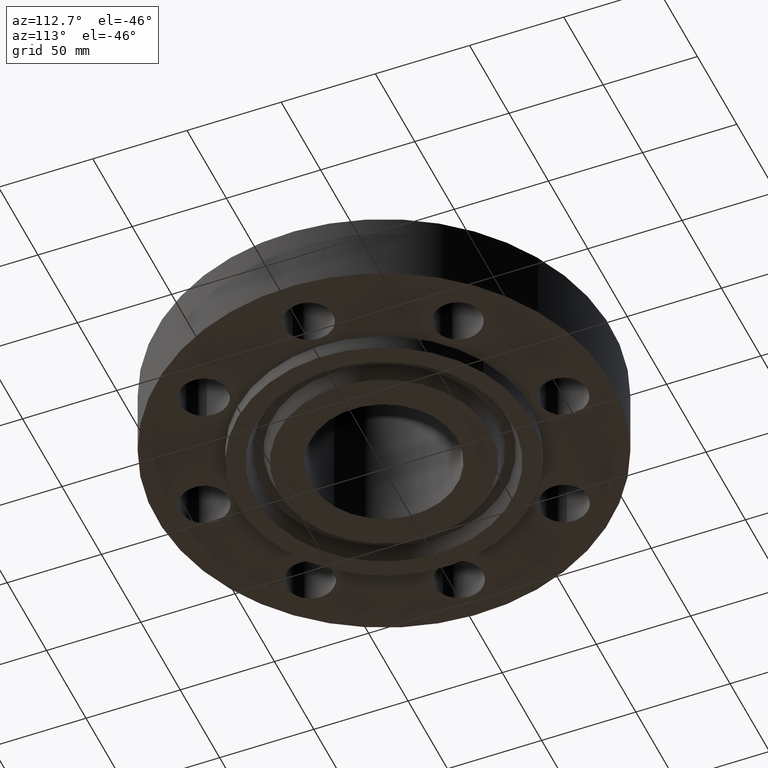
[diagram: clean part render]
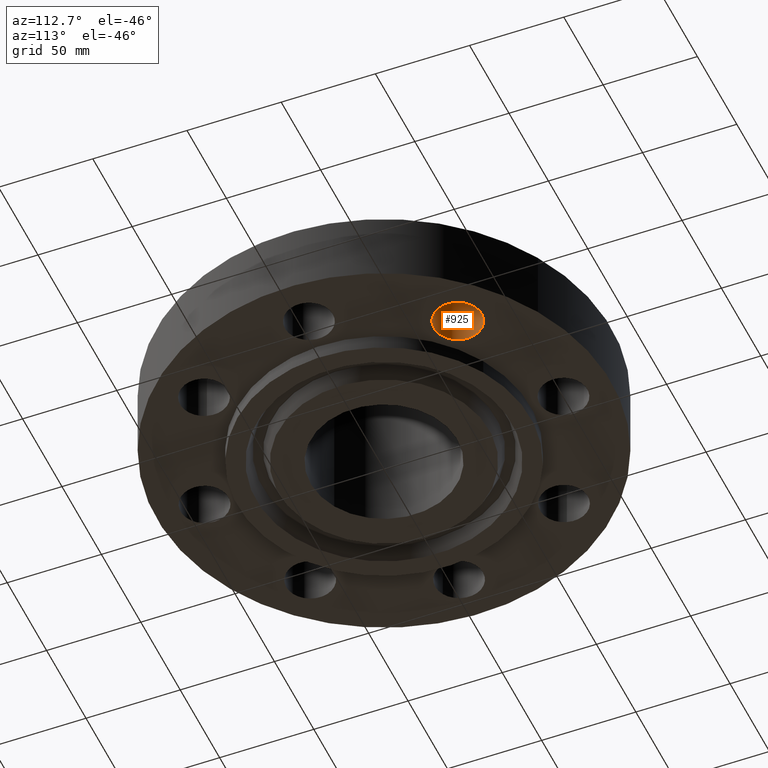
[diagram: same view with one face highlighted and labeled with its STEP entity id]
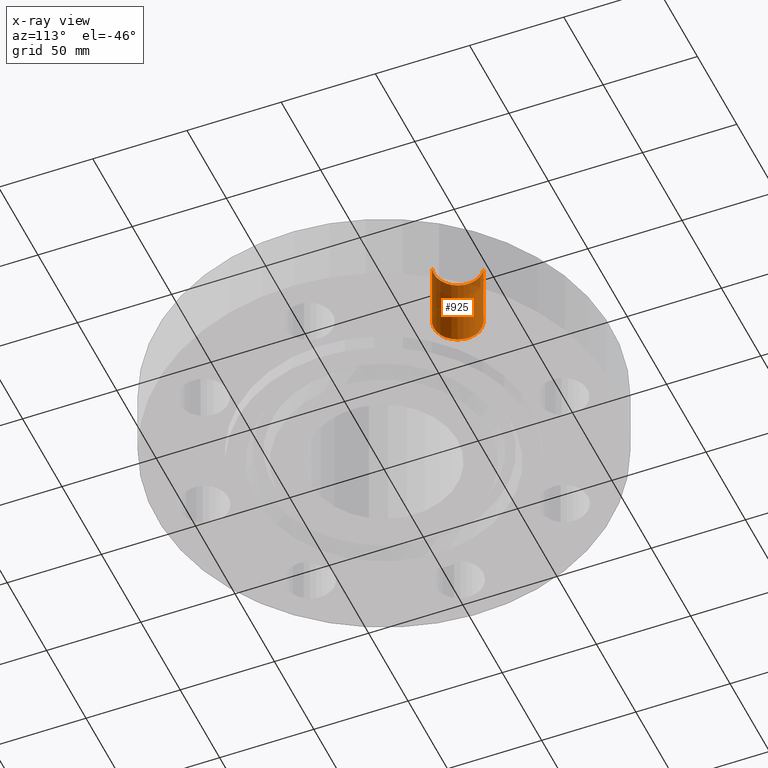
[diagram: x-ray of the same camera — body ghosted, the highlighted face saturated]
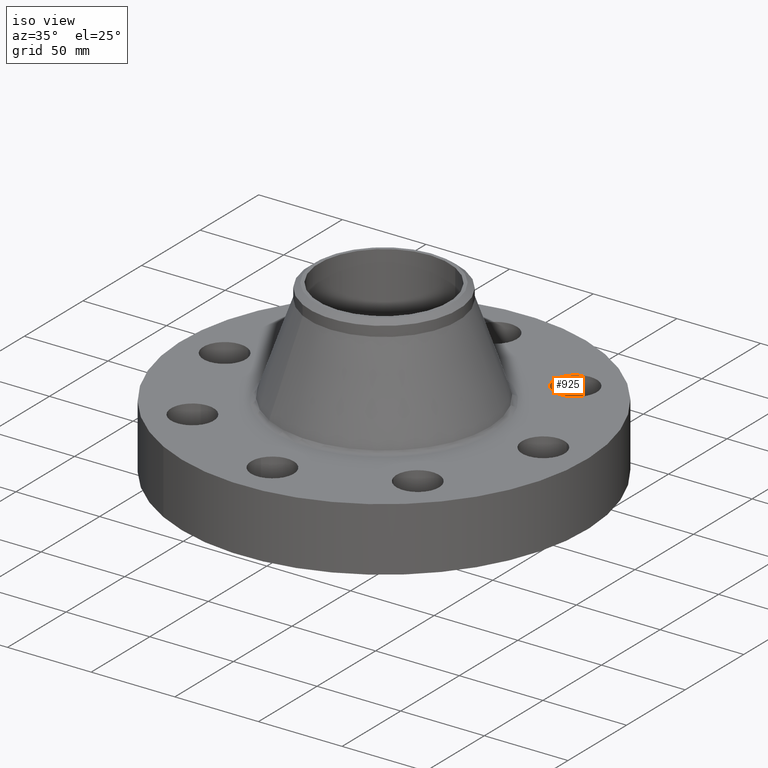
[diagram: same view with one face highlighted and labeled with its STEP entity id]
A machine part, auxiliary view. The second image highlights one B-rep face of the part: STEP entity #925.
The next image is the same camera in x-ray: the body ghosted, the highlighted face saturated — about 20% of this face is hidden behind the body in this view.
A second angle (iso view) of the same face is appended — the face is thin or edge-on in the first view.
In plain terms, the highlighted cylindrical surface (edge-blend (fillet) strip) has radius 12.7 mm, axis along (0, -0, -1).
Its self-contained STEP definition (entity closure, byte-faithful):
#509=AXIS2_PLACEMENT_3D('Circle Axis2P3D',#507,#508,$) ;
#886=AXIS2_PLACEMENT_3D('Cylinder Axis2P3D',#883,#884,#885) ;
#916=AXIS2_PLACEMENT_3D('Circle Axis2P3D',#914,#915,$) ;
#502=CARTESIAN_POINT('Vertex',(2.51088066389,3.13142524445,0.)) ;
#504=CARTESIAN_POINT('Vertex',(2.79242019503,2.17187561447,0.)) ;
#507=CARTESIAN_POINT('Axis2P3D Location',(2.65165042946,2.65165042946,0.)) ;
#883=CARTESIAN_POINT('Axis2P3D Location',(2.65165042946,2.65165042946,1.49606299213)) ;
#888=CARTESIAN_POINT('Line Origine',(2.51088066389,3.13142524445,0.750000000003)) ;
#892=CARTESIAN_POINT('Vertex',(2.51088066389,3.13142524445,1.50000000001)) ;
#895=CARTESIAN_POINT('Line Origine',(2.79242019503,2.17187561447,0.750000000003)) ;
#899=CARTESIAN_POINT('Vertex',(2.79242019503,2.17187561447,1.50000000001)) ;
#914=CARTESIAN_POINT('Axis2P3D Location',(2.65165042946,2.65165042946,1.50000000001)) ;
#508=DIRECTION('Axis2P3D Direction',(0.,0.,-0.0393700787402)) ;
#884=DIRECTION('Axis2P3D Direction',(0.,-0.,-0.0393700787402)) ;
#885=DIRECTION('Axis2P3D XDirection',(0.0110842335096,-0.0377775444876,0.)) ;
#889=DIRECTION('Vector Direction',(0.,0.,-0.0393700787402)) ;
#896=DIRECTION('Vector Direction',(0.,0.,-0.0393700787402)) ;
#915=DIRECTION('Axis2P3D Direction',(0.,-0.,-0.0393700787402)) ;
#890=VECTOR('Line Direction',#889,0.0393700787402) ;
#897=VECTOR('Line Direction',#896,0.0393700787402) ;
#920=ORIENTED_EDGE('',*,*,#901,.F.) ;
#921=ORIENTED_EDGE('',*,*,#511,.T.) ;
#922=ORIENTED_EDGE('',*,*,#894,.T.) ;
#923=ORIENTED_EDGE('',*,*,#918,.F.) ;
#925=ADVANCED_FACE('PartBody',(#924),#887,.F.) ;
#510=CIRCLE('generated circle',#509,0.500000000002) ;
#917=CIRCLE('generated circle',#916,0.500000000002) ;
#887=CYLINDRICAL_SURFACE('generated cylinder',#886,0.500000000002) ;
#511=EDGE_CURVE('',#505,#503,#510,.T.) ;
#894=EDGE_CURVE('',#503,#893,#891,.F.) ;
#901=EDGE_CURVE('',#505,#900,#898,.F.) ;
#918=EDGE_CURVE('',#900,#893,#917,.T.) ;
#919=EDGE_LOOP('',(#920,#921,#922,#923)) ;
#924=FACE_OUTER_BOUND('',#919,.T.) ;
#891=LINE('Line',#888,#890) ;
#898=LINE('Line',#895,#897) ;
#503=VERTEX_POINT('',#502) ;
#505=VERTEX_POINT('',#504) ;
#893=VERTEX_POINT('',#892) ;
#900=VERTEX_POINT('',#899) ;